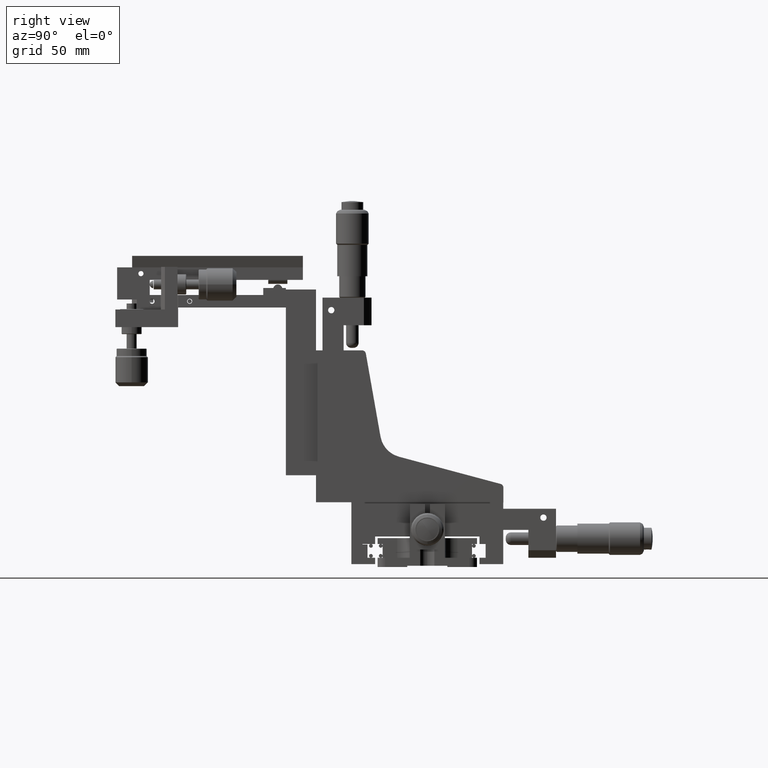
[diagram: clean part render]
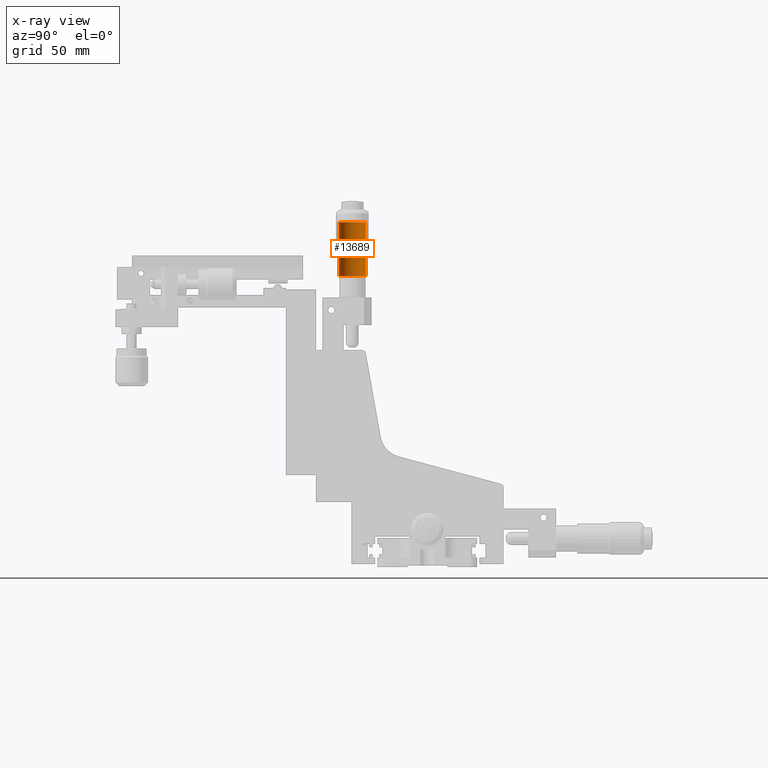
[diagram: x-ray — body ghosted, one internal face saturated and labeled with its STEP entity id]
A machine part, right view, then the same camera in x-ray: the body is ghosted and one INTERNAL B-rep face — a face not visible from any outside direction — is saturated and labeled: STEP entity #13689.
In plain terms, the highlighted cylindrical surface (edge-blend (fillet) strip) has radius 5.35 mm, axis along (-0, -0, -1).
Its self-contained STEP definition (entity closure, byte-faithful):
#13661 = VERTEX_POINT ( 'NONE', #23188 ) ;
#13664 = VERTEX_POINT ( 'NONE', #23194 ) ;
#13667 = VERTEX_POINT ( 'NONE', #23204 ) ;
#13668 = VERTEX_POINT ( 'NONE', #23239 ) ;
#13673 = EDGE_LOOP ( 'NONE', ( #13676, #13694, #13683, #13704 ) ) ;
#13676 = ORIENTED_EDGE ( 'NONE', *, *, #13693, .F. ) ;
#13683 = ORIENTED_EDGE ( 'NONE', *, *, #13688, .T. ) ;
#13684 = EDGE_CURVE ( 'NONE', #13664, #13668, #23230, .T. ) ;
#13688 = EDGE_CURVE ( 'NONE', #13667, #13668, #23241, .T. ) ;
#13689 = ADVANCED_FACE ( 'NONE', ( #23266 ), #23272, .F. ) ;
#13691 = EDGE_CURVE ( 'NONE', #13661, #13667, #23264, .T. ) ;
#13693 = EDGE_CURVE ( 'NONE', #13661, #13664, #23260, .T. ) ;
#13694 = ORIENTED_EDGE ( 'NONE', *, *, #13691, .T. ) ;
#13704 = ORIENTED_EDGE ( 'NONE', *, *, #13684, .F. ) ;
#23188 = CARTESIAN_POINT ( 'NONE',  ( -1.207754572808326600E-013, -35.19999999999996000, 137.3000000000004900 ) ) ;
#23194 = CARTESIAN_POINT ( 'NONE',  ( -1.214306433183765000E-013, -24.49999999999996100, 137.3000000000004900 ) ) ;
#23204 = CARTESIAN_POINT ( 'NONE',  ( -1.207754572808326600E-013, -35.20000000000001000, 115.8000000000005200 ) ) ;
#23215 = CARTESIAN_POINT ( 'NONE',  ( -1.214306433183765000E-013, -29.85000000000001200, 115.8000000000005100 ) ) ;
#23218 = AXIS2_PLACEMENT_3D ( 'NONE', #23215, #23263, #23262 ) ;
#23225 = CARTESIAN_POINT ( 'NONE',  ( -1.214306433183765000E-013, -29.84999999999995900, 137.3000000000004900 ) ) ;
#23229 = CARTESIAN_POINT ( 'NONE',  ( -1.214306433183765000E-013, -24.49999999999996100, 137.3000000000004900 ) ) ;
#23230 = LINE ( 'NONE', #23229, #23276 ) ;
#23239 = CARTESIAN_POINT ( 'NONE',  ( -1.214306433183765000E-013, -24.50000000000001100, 115.8000000000004900 ) ) ;
#23241 = CIRCLE ( 'NONE', #23218, 5.350000000000000500 ) ;
#23250 = DIRECTION ( 'NONE',  ( 0.0000000000000000000, 1.000000000000000000, 0.0000000000000000000 ) ) ;
#23251 = DIRECTION ( 'NONE',  ( -3.944304526105059000E-031, -2.484711615216907800E-015, -1.000000000000000000 ) ) ;
#23255 = DIRECTION ( 'NONE',  ( -3.944304526105059000E-031, -2.484711615216907800E-015, -1.000000000000000000 ) ) ;
#23256 = VECTOR ( 'NONE', #23255, 1000.000000000000000 ) ;
#23258 = AXIS2_PLACEMENT_3D ( 'NONE', #23273, #23251, #23250 ) ;
#23259 = CARTESIAN_POINT ( 'NONE',  ( -1.207754572808326600E-013, -35.19999999999996000, 137.3000000000004900 ) ) ;
#23260 = CIRCLE ( 'NONE', #23258, 5.350000000000000500 ) ;
#23261 = DIRECTION ( 'NONE',  ( -3.944304526105059000E-031, -2.484711615216907800E-015, -1.000000000000000000 ) ) ;
#23262 = DIRECTION ( 'NONE',  ( 0.0000000000000000000, 1.000000000000000000, -2.593979029498029000E-015 ) ) ;
#23263 = DIRECTION ( 'NONE',  ( -3.944304526105059000E-031, -2.484711615216907800E-015, -1.000000000000000000 ) ) ;
#23264 = LINE ( 'NONE', #23259, #23256 ) ;
#23265 = DIRECTION ( 'NONE',  ( 0.0000000000000000000, 1.000000000000000000, 0.0000000000000000000 ) ) ;
#23266 = FACE_OUTER_BOUND ( 'NONE', #13673, .T. ) ;
#23267 = AXIS2_PLACEMENT_3D ( 'NONE', #23225, #23261, #23265 ) ;
#23272 = CYLINDRICAL_SURFACE ( 'NONE', #23267, 5.350000000000000500 ) ;
#23273 = CARTESIAN_POINT ( 'NONE',  ( -1.214306433183765000E-013, -29.84999999999995900, 137.3000000000004900 ) ) ;
#23275 = DIRECTION ( 'NONE',  ( -3.944304526105059000E-031, -2.484711615216907800E-015, -1.000000000000000000 ) ) ;
#23276 = VECTOR ( 'NONE', #23275, 1000.000000000000000 ) ;